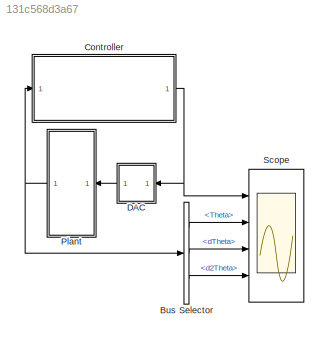
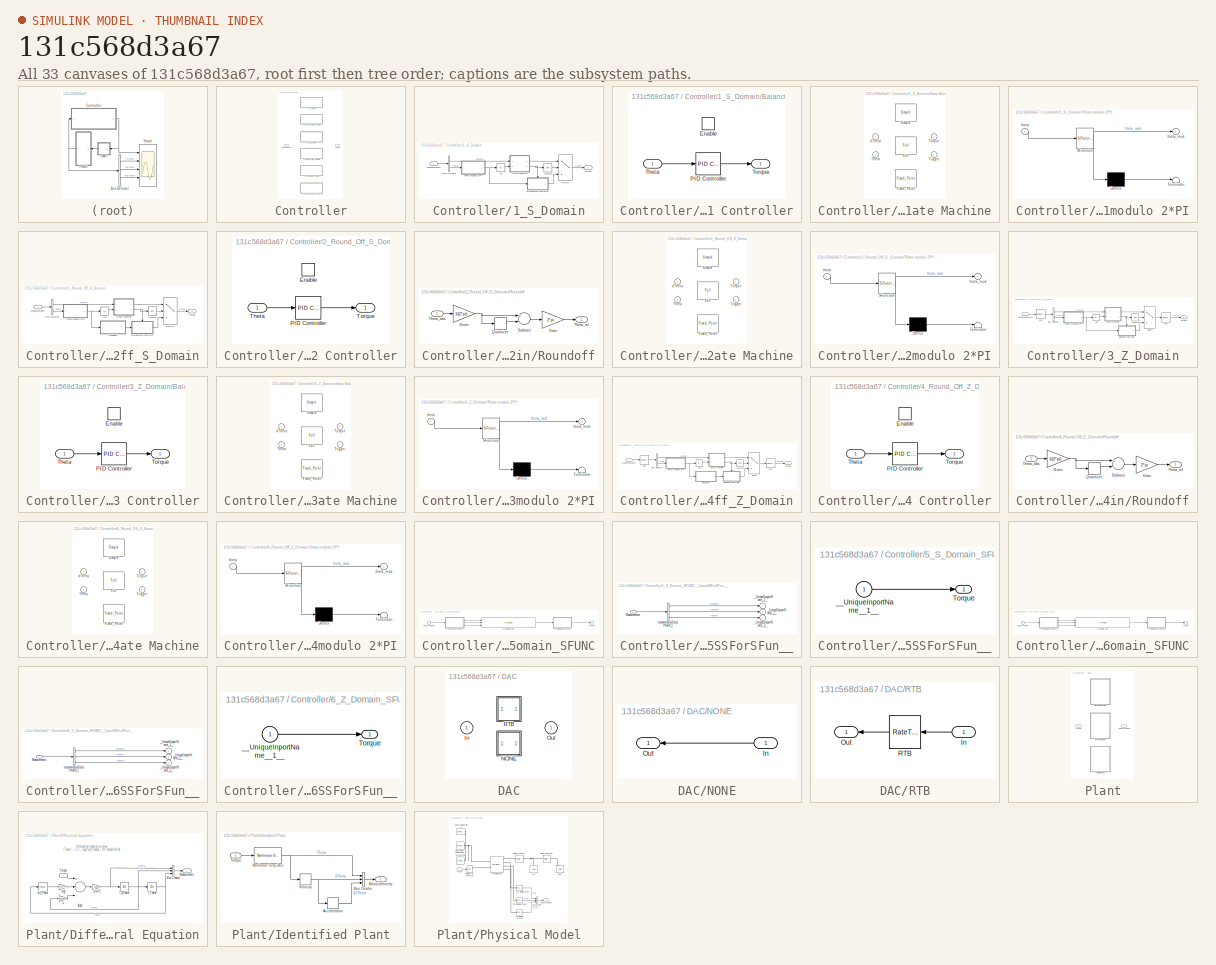
[diagram: thumbnail index - all 33 canvases of the model, root first then tree order]
MODEL slx_131c568d3a67
KIND model
CONFIG AbsTol = auto
CONFIG FixedStep = TS
CONFIG MaxStep = TS
CONFIG MinStep = auto
CONFIG RelTol = 1e-3
CONFIG SampleTimeConstraint = Unconstrained
CONFIG Solver = ode23t
CONFIG SolverMode = SingleTasking
CONFIG SolverName = ode23t
CONFIG StartTime = 0.0
CONFIG StopTime = 100
WORKSPACE source: external: MAT-File  (data not in archive)
BLOCK [BusSelector] Bus Selector
  OutputSignals = Theta,dTheta,d2Theta
  Ports = [1, 3]
BLOCK [SubSystem] Controller
  OverrideUsingVariant = SIM_S
  Ports = [1, 1]
  RequestExecContextInheritance = off
  Variant = on
BLOCK [SubSystem] Controller/1_S_Domain
  Ports = [1, 1]
  RequestExecContextInheritance = off
  Variant = off
  VariantControl = SIM_S
BLOCK [Abs] Controller/1_S_Domain/Abs
  SaturateOnIntegerOverflow = off
BLOCK [SubSystem] Controller/1_S_Domain/Balancing Controller
  Ports = [1, 1, 1]
  RequestExecContextInheritance = off
  TreatAsAtomicUnit = on
  Variant = off
BLOCK [EnablePort] Controller/1_S_Domain/Balancing Controller/Enable
  Ports = []
BLOCK [Reference] Controller/1_S_Domain/Balancing Controller/PID Controller  REF=simulink/Continuous/PID Controller
  Ports = [1, 1]
  SourceBlock = simulink/Continuous/PID Controller
  SourceType = PID 1dof
BLOCK [Inport] Controller/1_S_Domain/Balancing Controller/Theta
  IconDisplay = Port number
BLOCK [Outport] Controller/1_S_Domain/Balancing Controller/Torque
  IconDisplay = Port number
BLOCK [BusSelector] Controller/1_S_Domain/Bus Selector
  OutputSignals = dTheta,Theta
  Ports = [1, 2]
BLOCK [Logic] Controller/1_S_Domain/Inverter
  AllPortsSameDT = off
  Operator = NOT
  OutDataTypeStr = boolean
  Ports = [1, 1]
BLOCK [Inport] Controller/1_S_Domain/Measurements
  IconDisplay = Port number
BLOCK [SubSystem] Controller/1_S_Domain/State Machine
  OverrideUsingVariant = DOUBLE_PRECISION
  Ports = [2, 2]
  RequestExecContextInheritance = off
  Variant = on
BLOCK [Reference] Controller/1_S_Domain/State Machine/Fixed_Point  REF=State_Machine/Fixed_Point
  Ports = [2, 2]
  SourceBlock = State_Machine/Fixed_Point
BLOCK [Reference] Controller/1_S_Domain/State Machine/Full  REF=State_Machine/Full
  Ports = [2, 2]
  SourceBlock = State_Machine/Full
BLOCK [Reference] Controller/1_S_Domain/State Machine/Simple  REF=State_Machine/Simple
  Ports = [2, 2]
  SourceBlock = State_Machine/Simple
BLOCK [Inport] Controller/1_S_Domain/State Machine/Theta
  IconDisplay = Port number
  Port = 2
BLOCK [Outport] Controller/1_S_Domain/State Machine/Torque
  IconDisplay = Port number
BLOCK [Outport] Controller/1_S_Domain/State Machine/Trigger
  IconDisplay = Port number
  Port = 2
BLOCK [Inport] Controller/1_S_Domain/State Machine/dTheta
  IconDisplay = Port number
BLOCK [Switch] Controller/1_S_Domain/Switch
  Criteria = u2 > Threshold
  InputSameDT = off
  SaturateOnIntegerOverflow = off
BLOCK [SubSystem] Controller/1_S_Domain/Theta modulo 2*PI
  ErrorFcn = Stateflow.Translate.translate
  PermitHierarchicalResolution = ExplicitOnly
  Ports = [1, 1]
  RequestExecContextInheritance = off
  SFBlockType = MATLAB Function
  TreatAsAtomicUnit = on
  Variant = off
BLOCK [Demux] Controller/1_S_Domain/Theta modulo 2*PI/ Demux 
  Outputs = 1
  Ports = [1, 1]
BLOCK [S-Function] Controller/1_S_Domain/Theta modulo 2*PI/ SFunction 
  EnableBusSupport = on
  FunctionName = sf_sfun
  PortCounts = [1 2]
  Ports = [1, 2]
  SFunctionDeploymentMode = off
  Tag = Stateflow S-Function Inverted_Pendulum 3
BLOCK [Terminator] Controller/1_S_Domain/Theta modulo 2*PI/ Terminator 
BLOCK [Inport] Controller/1_S_Domain/Theta modulo 2*PI/theta
  IconDisplay = Port number
BLOCK [Outport] Controller/1_S_Domain/Theta modulo 2*PI/theta_mod
  IconDisplay = Port number
BLOCK [Outport] Controller/1_S_Domain/Torque
  IconDisplay = Port number
BLOCK [SubSystem] Controller/2_Round_Off_S_Domain
  Ports = [1, 1]
  RequestExecContextInheritance = off
  Variant = off
  VariantControl = SIM_ROUND_S
BLOCK [Abs] Controller/2_Round_Off_S_Domain/Abs
  SaturateOnIntegerOverflow = off
BLOCK [SubSystem] Controller/2_Round_Off_S_Domain/Balancing Controller
  Ports = [1, 1, 1]
  RequestExecContextInheritance = off
  TreatAsAtomicUnit = on
  Variant = off
BLOCK [EnablePort] Controller/2_Round_Off_S_Domain/Balancing Controller/Enable
  Ports = []
BLOCK [Reference] Controller/2_Round_Off_S_Domain/Balancing Controller/PID Controller  REF=simulink/Continuous/PID Controller
  Ports = [1, 1]
  SourceBlock = simulink/Continuous/PID Controller
  SourceType = PID 1dof
BLOCK [Inport] Controller/2_Round_Off_S_Domain/Balancing Controller/Theta
  IconDisplay = Port number
BLOCK [Outport] Controller/2_Round_Off_S_Domain/Balancing Controller/Torque
  IconDisplay = Port number
BLOCK [BusSelector] Controller/2_Round_Off_S_Domain/Bus Selector
  OutputSignals = dTheta,Theta
  Ports = [1, 2]
BLOCK [Logic] Controller/2_Round_Off_S_Domain/Inverter
  AllPortsSameDT = off
  Operator = NOT
  OutDataTypeStr = boolean
  Ports = [1, 1]
BLOCK [Inport] Controller/2_Round_Off_S_Domain/Measurements
  IconDisplay = Port number
BLOCK [SubSystem] Controller/2_Round_Off_S_Domain/Roundoff
  Ports = [1, 1]
  RequestExecContextInheritance = off
  Variant = off
BLOCK [Gain] Controller/2_Round_Off_S_Domain/Roundoff/Gain
  Gain = 2*pi
  OutDataTypeStr = Inherit: Inherit via internal rule
  ParamDataTypeStr = Inherit: Inherit via internal rule
  SaturateOnIntegerOverflow = off
BLOCK [Gain] Controller/2_Round_Off_S_Domain/Roundoff/Norm
  Gain = 1/(2*pi)
  OutDataTypeStr = Inherit: Inherit via internal rule
  ParamDataTypeStr = Inherit: Inherit via internal rule
  SaturateOnIntegerOverflow = off
BLOCK [Quantizer] Controller/2_Round_Off_S_Domain/Roundoff/Quantizer
  QuantizationInterval = 1
BLOCK [Sum] Controller/2_Round_Off_S_Domain/Roundoff/Subtract
  InputSameDT = off
  Inputs = +-
  OutDataTypeStr = Inherit: Inherit via internal rule
  Ports = [2, 1]
  SaturateOnIntegerOverflow = off
BLOCK [Inport] Controller/2_Round_Off_S_Domain/Roundoff/Theta_abs
  IconDisplay = Port number
BLOCK [Outport] Controller/2_Round_Off_S_Domain/Roundoff/Theta_rel
  IconDisplay = Port number
BLOCK [SubSystem] Controller/2_Round_Off_S_Domain/State Machine
  OverrideUsingVariant = DOUBLE_PRECISION
  Ports = [2, 2]
  RequestExecContextInheritance = off
  Variant = on
BLOCK [Reference] Controller/2_Round_Off_S_Domain/State Machine/Fixed_Point  REF=State_Machine/Fixed_Point
  Ports = [2, 2]
  SourceBlock = State_Machine/Fixed_Point
BLOCK [Reference] Controller/2_Round_Off_S_Domain/State Machine/Full  REF=State_Machine/Full
  Ports = [2, 2]
  SourceBlock = State_Machine/Full
BLOCK [Reference] Controller/2_Round_Off_S_Domain/State Machine/Simple  REF=State_Machine/Simple
  Ports = [2, 2]
  SourceBlock = State_Machine/Simple
BLOCK [Inport] Controller/2_Round_Off_S_Domain/State Machine/Theta
  IconDisplay = Port number
  Port = 2
BLOCK [Outport] Controller/2_Round_Off_S_Domain/State Machine/Torque
  IconDisplay = Port number
BLOCK [Outport] Controller/2_Round_Off_S_Domain/State Machine/Trigger
  IconDisplay = Port number
  Port = 2
BLOCK [Inport] Controller/2_Round_Off_S_Domain/State Machine/dTheta
  IconDisplay = Port number
BLOCK [Switch] Controller/2_Round_Off_S_Domain/Switch
  Criteria = u2 > Threshold
  InputSameDT = off
  SaturateOnIntegerOverflow = off
BLOCK [SubSystem] Controller/2_Round_Off_S_Domain/Theta modulo 2*PI
  ErrorFcn = Stateflow.Translate.translate
  PermitHierarchicalResolution = ExplicitOnly
  Ports = [1, 1]
  RequestExecContextInheritance = off
  SFBlockType = MATLAB Function
  TreatAsAtomicUnit = on
  Variant = off
BLOCK [Demux] Controller/2_Round_Off_S_Domain/Theta modulo 2*PI/ Demux 
  Outputs = 1
  Ports = [1, 1]
BLOCK [S-Function] Controller/2_Round_Off_S_Domain/Theta modulo 2*PI/ SFunction 
  EnableBusSupport = on
  FunctionName = sf_sfun
  PortCounts = [1 2]
  Ports = [1, 2]
  SFunctionDeploymentMode = off
  Tag = Stateflow S-Function Inverted_Pendulum 1
BLOCK [Terminator] Controller/2_Round_Off_S_Domain/Theta modulo 2*PI/ Terminator 
BLOCK [Inport] Controller/2_Round_Off_S_Domain/Theta modulo 2*PI/theta
  IconDisplay = Port number
BLOCK [Outport] Controller/2_Round_Off_S_Domain/Theta modulo 2*PI/theta_mod
  IconDisplay = Port number
BLOCK [Outport] Controller/2_Round_Off_S_Domain/Torque
  IconDisplay = Port number
BLOCK [SubSystem] Controller/3_Z_Domain
  Ports = [1, 1]
  RequestExecContextInheritance = off
  Variant = off
  VariantControl = SIM_Z
BLOCK [RateTransition] Controller/3_Z_Domain/ADC
BLOCK [Abs] Controller/3_Z_Domain/Abs
  SaturateOnIntegerOverflow = off
BLOCK [SubSystem] Controller/3_Z_Domain/Balancing Controller
  Ports = [1, 1, 1]
  RequestExecContextInheritance = off
  TreatAsAtomicUnit = on
  Variant = off
BLOCK [EnablePort] Controller/3_Z_Domain/Balancing Controller/Enable
  Ports = []
BLOCK [Reference] Controller/3_Z_Domain/Balancing Controller/PID Controller  REF=simulink/Continuous/PID Controller
  Ports = [1, 1]
  SourceBlock = simulink/Continuous/PID Controller
  SourceType = PID 1dof
BLOCK [Inport] Controller/3_Z_Domain/Balancing Controller/Theta
  IconDisplay = Port number
BLOCK [Outport] Controller/3_Z_Domain/Balancing Controller/Torque
  IconDisplay = Port number
BLOCK [BusSelector] Controller/3_Z_Domain/Bus Selector
  OutputSignals = dTheta,Theta
  Ports = [1, 2]
BLOCK [RateTransition] Controller/3_Z_Domain/DAC
BLOCK [Logic] Controller/3_Z_Domain/Inverter
  AllPortsSameDT = off
  Operator = NOT
  OutDataTypeStr = boolean
  Ports = [1, 1]
BLOCK [Inport] Controller/3_Z_Domain/Measurements
  IconDisplay = Port number
BLOCK [SubSystem] Controller/3_Z_Domain/State Machine
  OverrideUsingVariant = DOUBLE_PRECISION
  Ports = [2, 2]
  RequestExecContextInheritance = off
  Variant = on
BLOCK [Reference] Controller/3_Z_Domain/State Machine/Fixed_Point  REF=State_Machine/Fixed_Point
  Ports = [2, 2]
  SourceBlock = State_Machine/Fixed_Point
BLOCK [Reference] Controller/3_Z_Domain/State Machine/Full  REF=State_Machine/Full
  Ports = [2, 2]
  SourceBlock = State_Machine/Full
BLOCK [Reference] Controller/3_Z_Domain/State Machine/Simple  REF=State_Machine/Simple
  Ports = [2, 2]
  SourceBlock = State_Machine/Simple
BLOCK [Inport] Controller/3_Z_Domain/State Machine/Theta
  IconDisplay = Port number
  Port = 2
BLOCK [Outport] Controller/3_Z_Domain/State Machine/Torque
  IconDisplay = Port number
BLOCK [Outport] Controller/3_Z_Domain/State Machine/Trigger
  IconDisplay = Port number
  Port = 2
BLOCK [Inport] Controller/3_Z_Domain/State Machine/dTheta
  IconDisplay = Port number
BLOCK [Switch] Controller/3_Z_Domain/Switch
  Criteria = u2 > Threshold
  InputSameDT = off
  SaturateOnIntegerOverflow = off
BLOCK [SubSystem] Controller/3_Z_Domain/Theta modulo 2*PI
  ErrorFcn = Stateflow.Translate.translate
  PermitHierarchicalResolution = ExplicitOnly
  Ports = [1, 1]
  RequestExecContextInheritance = off
  SFBlockType = MATLAB Function
  TreatAsAtomicUnit = on
  Variant = off
BLOCK [Demux] Controller/3_Z_Domain/Theta modulo 2*PI/ Demux 
  Outputs = 1
  Ports = [1, 1]
BLOCK [S-Function] Controller/3_Z_Domain/Theta modulo 2*PI/ SFunction 
  EnableBusSupport = on
  FunctionName = sf_sfun
  PortCounts = [1 2]
  Ports = [1, 2]
  SFunctionDeploymentMode = off
  Tag = Stateflow S-Function Inverted_Pendulum 2
BLOCK [Terminator] Controller/3_Z_Domain/Theta modulo 2*PI/ Terminator 
BLOCK [Inport] Controller/3_Z_Domain/Theta modulo 2*PI/theta
  IconDisplay = Port number
BLOCK [Outport] Controller/3_Z_Domain/Theta modulo 2*PI/theta_mod
  IconDisplay = Port number
BLOCK [Outport] Controller/3_Z_Domain/Torque
  IconDisplay = Port number
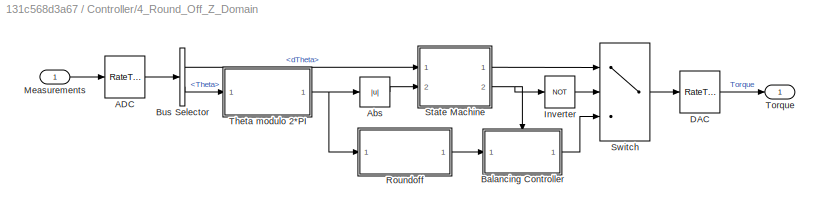
BLOCK [SubSystem] Controller/4_Round_Off_Z_Domain
  Ports = [1, 1]
  RequestExecContextInheritance = off
  Variant = off
  VariantControl = SIM_ROUND_Z
BLOCK [RateTransition] Controller/4_Round_Off_Z_Domain/ADC
BLOCK [Abs] Controller/4_Round_Off_Z_Domain/Abs
  SaturateOnIntegerOverflow = off
BLOCK [SubSystem] Controller/4_Round_Off_Z_Domain/Balancing Controller
  Ports = [1, 1, 1]
  RequestExecContextInheritance = off
  TreatAsAtomicUnit = on
  Variant = off
BLOCK [EnablePort] Controller/4_Round_Off_Z_Domain/Balancing Controller/Enable
  Ports = []
BLOCK [Reference] Controller/4_Round_Off_Z_Domain/Balancing Controller/PID Controller  REF=simulink/Continuous/PID Controller
  Ports = [1, 1]
  SourceBlock = simulink/Continuous/PID Controller
  SourceType = PID 1dof
BLOCK [Inport] Controller/4_Round_Off_Z_Domain/Balancing Controller/Theta
  IconDisplay = Port number
BLOCK [Outport] Controller/4_Round_Off_Z_Domain/Balancing Controller/Torque
  IconDisplay = Port number
BLOCK [BusSelector] Controller/4_Round_Off_Z_Domain/Bus Selector
  OutputSignals = dTheta,Theta
  Ports = [1, 2]
BLOCK [RateTransition] Controller/4_Round_Off_Z_Domain/DAC
BLOCK [Logic] Controller/4_Round_Off_Z_Domain/Inverter
  AllPortsSameDT = off
  Operator = NOT
  OutDataTypeStr = boolean
  Ports = [1, 1]
BLOCK [Inport] Controller/4_Round_Off_Z_Domain/Measurements
  IconDisplay = Port number
BLOCK [SubSystem] Controller/4_Round_Off_Z_Domain/Roundoff
  Ports = [1, 1]
  RequestExecContextInheritance = off
  Variant = off
BLOCK [Gain] Controller/4_Round_Off_Z_Domain/Roundoff/Gain
  Gain = 2*pi
  OutDataTypeStr = Inherit: Inherit via internal rule
  ParamDataTypeStr = Inherit: Inherit via internal rule
  SaturateOnIntegerOverflow = off
BLOCK [Gain] Controller/4_Round_Off_Z_Domain/Roundoff/Norm
  Gain = 1/(2*pi)
  OutDataTypeStr = Inherit: Inherit via internal rule
  ParamDataTypeStr = Inherit: Inherit via internal rule
  SaturateOnIntegerOverflow = off
BLOCK [Quantizer] Controller/4_Round_Off_Z_Domain/Roundoff/Quantizer
  QuantizationInterval = 1
BLOCK [Sum] Controller/4_Round_Off_Z_Domain/Roundoff/Subtract
  InputSameDT = off
  Inputs = +-
  OutDataTypeStr = Inherit: Inherit via internal rule
  Ports = [2, 1]
  SaturateOnIntegerOverflow = off
BLOCK [Inport] Controller/4_Round_Off_Z_Domain/Roundoff/Theta_abs
  IconDisplay = Port number
BLOCK [Outport] Controller/4_Round_Off_Z_Domain/Roundoff/Theta_rel
  IconDisplay = Port number
BLOCK [SubSystem] Controller/4_Round_Off_Z_Domain/State Machine
  OverrideUsingVariant = DOUBLE_PRECISION
  Ports = [2, 2]
  RequestExecContextInheritance = off
  Variant = on
BLOCK [Reference] Controller/4_Round_Off_Z_Domain/State Machine/Fixed_Point  REF=State_Machine/Fixed_Point
  Ports = [2, 2]
  SourceBlock = State_Machine/Fixed_Point
BLOCK [Reference] Controller/4_Round_Off_Z_Domain/State Machine/Full  REF=State_Machine/Full
  Ports = [2, 2]
  SourceBlock = State_Machine/Full
BLOCK [Reference] Controller/4_Round_Off_Z_Domain/State Machine/Simple  REF=State_Machine/Simple
  Ports = [2, 2]
  SourceBlock = State_Machine/Simple
BLOCK [Inport] Controller/4_Round_Off_Z_Domain/State Machine/Theta
  IconDisplay = Port number
  Port = 2
BLOCK [Outport] Controller/4_Round_Off_Z_Domain/State Machine/Torque
  IconDisplay = Port number
BLOCK [Outport] Controller/4_Round_Off_Z_Domain/State Machine/Trigger
  IconDisplay = Port number
  Port = 2
BLOCK [Inport] Controller/4_Round_Off_Z_Domain/State Machine/dTheta
  IconDisplay = Port number
BLOCK [Switch] Controller/4_Round_Off_Z_Domain/Switch
  Criteria = u2 > Threshold
  InputSameDT = off
  SaturateOnIntegerOverflow = off
BLOCK [SubSystem] Controller/4_Round_Off_Z_Domain/Theta modulo 2*PI
  ErrorFcn = Stateflow.Translate.translate
  PermitHierarchicalResolution = ExplicitOnly
  Ports = [1, 1]
  RequestExecContextInheritance = off
  SFBlockType = MATLAB Function
  TreatAsAtomicUnit = on
  Variant = off
BLOCK [Demux] Controller/4_Round_Off_Z_Domain/Theta modulo 2*PI/ Demux 
  Outputs = 1
  Ports = [1, 1]
BLOCK [S-Function] Controller/4_Round_Off_Z_Domain/Theta modulo 2*PI/ SFunction 
  EnableBusSupport = on
  FunctionName = sf_sfun
  PortCounts = [1 2]
  Ports = [1, 2]
  SFunctionDeploymentMode = off
  Tag = Stateflow S-Function Inverted_Pendulum 4
BLOCK [Terminator] Controller/4_Round_Off_Z_Domain/Theta modulo 2*PI/ Terminator 
BLOCK [Inport] Controller/4_Round_Off_Z_Domain/Theta modulo 2*PI/theta
  IconDisplay = Port number
BLOCK [Outport] Controller/4_Round_Off_Z_Domain/Theta modulo 2*PI/theta_mod
  IconDisplay = Port number
BLOCK [Outport] Controller/4_Round_Off_Z_Domain/Torque
  IconDisplay = Port number
BLOCK [SubSystem] Controller/5_S_Domain_SFUNC
  Ports = [1, 1]
  RequestExecContextInheritance = off
  Variant = off
  VariantControl = SFUNC_S
BLOCK [Inport] Controller/5_S_Domain_SFUNC/Measurements
  IconDisplay = Port number
BLOCK [S-Function] Controller/5_S_Domain_SFUNC/S_Domain_sfcn
  CopyFcn = if ~strcmp(get_param(gcb,'Linkstatus'),'none') && ...\n~strcmp(get_param(gcb,'Linkstatus'),'implicit')      \n  set_param(gcb,'LinkStatus','none');                \nend
  EnableBusSupport = off
  FunctionName = S_Domain_sf
  Ports = [3, 1]
  SFunctionDeploymentMode = off
BLOCK [Outport] Controller/5_S_Domain_SFUNC/Torque
  IconDisplay = Port number
BLOCK [SubSystem] Controller/5_S_Domain_SFUNC/__InputSSForSFun__
  PermitHierarchicalResolution = ExplicitOnly
  Ports = [1, 3]
  RequestExecContextInheritance = off
  Variant = off
BLOCK [Inport] Controller/5_S_Domain_SFUNC/__InputSSForSFun__/Measurements
  IconDisplay = Port number
BLOCK [Outport] Controller/5_S_Domain_SFUNC/__InputSSForSFun__/__UniqueOutportName__1__
  IconDisplay = Port number
BLOCK [Outport] Controller/5_S_Domain_SFUNC/__InputSSForSFun__/__UniqueOutportName__2__
  IconDisplay = Port number
  Port = 2
BLOCK [Outport] Controller/5_S_Domain_SFUNC/__InputSSForSFun__/__UniqueOutportName__3__
  IconDisplay = Port number
  Port = 3
BLOCK [BusSelector] Controller/5_S_Domain_SFUNC/__InputSSForSFun__/temporaryBusSelectName_1
  OutputSignals = d2Theta,dTheta,Theta
  Ports = [1, 3]
BLOCK [SubSystem] Controller/5_S_Domain_SFUNC/__OutputSSForSFun__
  PermitHierarchicalResolution = ExplicitOnly
  Ports = [1, 1]
  RequestExecContextInheritance = off
  Variant = off
BLOCK [Outport] Controller/5_S_Domain_SFUNC/__OutputSSForSFun__/Torque
  IconDisplay = Port number
BLOCK [Inport] Controller/5_S_Domain_SFUNC/__OutputSSForSFun__/__UniqueInportName__1__
  IconDisplay = Port number
BLOCK [SubSystem] Controller/6_Z_Domain_SFUNC
  Ports = [1, 1]
  RequestExecContextInheritance = off
  Variant = off
  VariantControl = SFUNC_Z
BLOCK [Inport] Controller/6_Z_Domain_SFUNC/Measurements
  IconDisplay = Port number
BLOCK [Outport] Controller/6_Z_Domain_SFUNC/Torque
  IconDisplay = Port number
BLOCK [S-Function] Controller/6_Z_Domain_SFUNC/Z_Domain_sfcn
  CopyFcn = if ~strcmp(get_param(gcb,'Linkstatus'),'none') && ...\n~strcmp(get_param(gcb,'Linkstatus'),'implicit')      \n  set_param(gcb,'LinkStatus','none');                \nend
  EnableBusSupport = off
  FunctionName = Z_Domain_sf
  Ports = [3, 1]
  SFunctionDeploymentMode = off
BLOCK [SubSystem] Controller/6_Z_Domain_SFUNC/__InputSSForSFun__
  PermitHierarchicalResolution = ExplicitOnly
  Ports = [1, 3]
  RequestExecContextInheritance = off
  Variant = off
BLOCK [Inport] Controller/6_Z_Domain_SFUNC/__InputSSForSFun__/Measurements
  IconDisplay = Port number
BLOCK [Outport] Controller/6_Z_Domain_SFUNC/__InputSSForSFun__/__UniqueOutportName__1__
  IconDisplay = Port number
BLOCK [Outport] Controller/6_Z_Domain_SFUNC/__InputSSForSFun__/__UniqueOutportName__2__
  IconDisplay = Port number
  Port = 2
BLOCK [Outport] Controller/6_Z_Domain_SFUNC/__InputSSForSFun__/__UniqueOutportName__3__
  IconDisplay = Port number
  Port = 3
BLOCK [BusSelector] Controller/6_Z_Domain_SFUNC/__InputSSForSFun__/temporaryBusSelectName_1
  OutputSignals = d2Theta,dTheta,Theta
  Ports = [1, 3]
BLOCK [SubSystem] Controller/6_Z_Domain_SFUNC/__OutputSSForSFun__
  PermitHierarchicalResolution = ExplicitOnly
  Ports = [1, 1]
  RequestExecContextInheritance = off
  Variant = off
BLOCK [Outport] Controller/6_Z_Domain_SFUNC/__OutputSSForSFun__/Torque
  IconDisplay = Port number
BLOCK [Inport] Controller/6_Z_Domain_SFUNC/__OutputSSForSFun__/__UniqueInportName__1__
  IconDisplay = Port number
BLOCK [Inport] Controller/Measurements
  IconDisplay = Port number
BLOCK [Outport] Controller/Torque
  IconDisplay = Port number
BLOCK [SubSystem] DAC
  OverrideUsingVariant = DAC_ON
  Ports = [1, 1]
  RequestExecContextInheritance = off
  Variant = on
BLOCK [Inport] DAC/In
  IconDisplay = Port number
BLOCK [SubSystem] DAC/NONE
  Ports = [1, 1]
  RequestExecContextInheritance = off
  Variant = off
  VariantControl = DAC_OFF
BLOCK [Inport] DAC/NONE/In
  IconDisplay = Port number
BLOCK [Outport] DAC/NONE/Out
  IconDisplay = Port number
BLOCK [Outport] DAC/Out
  IconDisplay = Port number
BLOCK [SubSystem] DAC/RTB
  Ports = [1, 1]
  RequestExecContextInheritance = off
  Variant = off
  VariantControl = DAC_ON
BLOCK [Inport] DAC/RTB/In
  IconDisplay = Port number
BLOCK [Outport] DAC/RTB/Out
  IconDisplay = Port number
BLOCK [RateTransition] DAC/RTB/RTB
BLOCK [SubSystem] Plant
  AttributesFormatString = %<BlockChoice>
  OverrideUsingVariant = EQUATION
  Ports = [1, 1]
  RequestExecContextInheritance = off
  Variant = on
BLOCK [SubSystem] Plant/Differential Equation
  Ports = [1, 1]
  RequestExecContextInheritance = off
  Variant = off
  VariantControl = EQUATION
BLOCK [Gain] Plant/Differential Equation/1//ml^2
  Gain = 1/(PENDULUM_MASS*PENDULUM_LENGTH^2)
  OutDataTypeStr = Inherit: Inherit via internal rule
  ParamDataTypeStr = Inherit: Inherit via internal rule
  SaturateOnIntegerOverflow = off
BLOCK [Sum] Plant/Differential Equation/Add
  InputSameDT = off
  Inputs = +--
  OutDataTypeStr = Inherit: Inherit via internal rule
  Ports = [3, 1]
  SaturateOnIntegerOverflow = off
BLOCK [BusCreator] Plant/Differential Equation/Bus Creator
  DisplayOption = bar
  InheritFromInputs = on
  Inputs = 3
  Ports = [3, 1]
BLOCK [Integrator] Plant/Differential Equation/I_Theta
  InitialCondition = Theta0
  Ports = [1, 1]
BLOCK [Integrator] Plant/Differential Equation/I_dTheta
  Ports = [1, 1]
BLOCK [Outport] Plant/Differential Equation/Measurements
  IconDisplay = Port number
BLOCK [Inport] Plant/Differential Equation/Torque
  IconDisplay = Port number
BLOCK [Gain] Plant/Differential Equation/k
  Gain = PENDULUM_FRICTION
  OutDataTypeStr = Inherit: Inherit via internal rule
  ParamDataTypeStr = Inherit: Inherit via internal rule
  SaturateOnIntegerOverflow = off
BLOCK [Gain] Plant/Differential Equation/mgl
  Gain = GRAVITY*PENDULUM_MASS*PENDULUM_LENGTH
  OutDataTypeStr = Inherit: Inherit via internal rule
  ParamDataTypeStr = Inherit: Inherit via internal rule
  SaturateOnIntegerOverflow = off
BLOCK [Trigonometry] Plant/Differential Equation/sin_Theta
  Ports = [1, 1]
BLOCK [SubSystem] Plant/Identified Plant
  Ports = [1, 1]
  RequestExecContextInheritance = off
  Variant = off
  VariantControl = IDENT
BLOCK [Derivative] Plant/Identified Plant/Acceleration
BLOCK [BusCreator] Plant/Identified Plant/Bus Creator
  DisplayOption = bar
  InheritFromInputs = on
  Inputs = 3
  Ports = [3, 1]
BLOCK [Outport] Plant/Identified Plant/Measurements
  IconDisplay = Port number
BLOCK [Reference] Plant/Identified Plant/Nonlinear Grey-Box  REF=slident/Models/Nonlinear Grey-Box Model  (lib defined in mdl_f7d4911ca73a)
  Ports = [1, 1]
  SourceBlock = slident/Models/Nonlinear Grey-Box Model
  SourceType = Nonlinear Grey-Box Model
BLOCK [Inport] Plant/Identified Plant/Torque
  IconDisplay = Port number
BLOCK [Derivative] Plant/Identified Plant/Velocity
BLOCK [Outport] Plant/Measurements
  IconDisplay = Port number
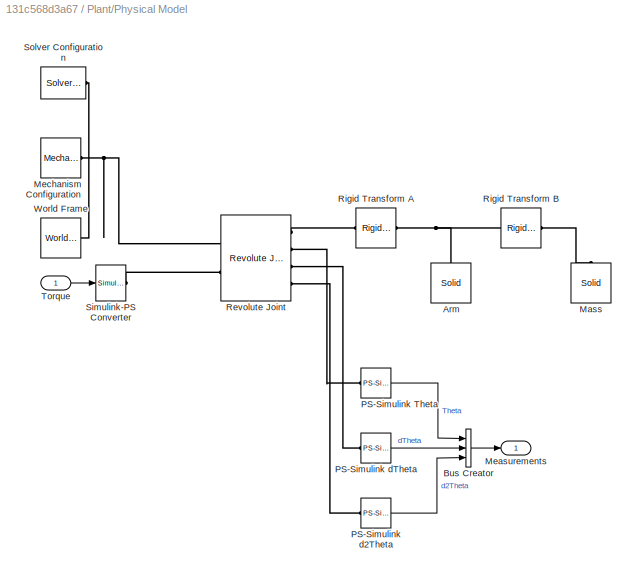
BLOCK [SubSystem] Plant/Physical Model
  Ports = [1, 1]
  RequestExecContextInheritance = off
  Variant = off
  VariantControl = PHYSICAL
BLOCK [Reference] Plant/Physical Model/Arm  REF=sm_lib/Body Elements/Solid
  Ports = [0, 0, 0, 0, 0, 0, 1]
  SourceBlock = sm_lib/Body Elements/Solid
  SourceType = Solid
BLOCK [BusCreator] Plant/Physical Model/Bus Creator
  DisplayOption = bar
  InheritFromInputs = on
  Inputs = 3
  Ports = [3, 1]
BLOCK [Reference] Plant/Physical Model/Mass  REF=sm_lib/Body Elements/Solid
  Ports = [0, 0, 0, 0, 0, 0, 1]
  SourceBlock = sm_lib/Body Elements/Solid
  SourceType = Solid
BLOCK [Outport] Plant/Physical Model/Measurements
  IconDisplay = Port number
BLOCK [Reference] Plant/Physical Model/Mechanism Configuration  REF=sm_lib/Utilities/Mechanism
Configuration
  Ports = [0, 0, 0, 0, 0, 0, 1]
  SourceBlock = sm_lib/Utilities/Mechanism\nConfiguration
  SourceType = Mechanism\nConfiguration
BLOCK [Reference] Plant/Physical Model/PS-Simulink Theta  REF=nesl_utility/PS-Simulink
Converter
  Ports = [0, 1, 0, 0, 0, 1]
  SourceBlock = nesl_utility/PS-Simulink\nConverter
  SourceType = PS-Simulink\nConverter
BLOCK [Reference] Plant/Physical Model/PS-Simulink d2Theta  REF=nesl_utility/PS-Simulink
Converter
  Ports = [0, 1, 0, 0, 0, 1]
  SourceBlock = nesl_utility/PS-Simulink\nConverter
  SourceType = PS-Simulink\nConverter
BLOCK [Reference] Plant/Physical Model/PS-Simulink dTheta  REF=nesl_utility/PS-Simulink
Converter
  Ports = [0, 1, 0, 0, 0, 1]
  SourceBlock = nesl_utility/PS-Simulink\nConverter
  SourceType = PS-Simulink\nConverter
BLOCK [Reference] Plant/Physical Model/Revolute Joint  REF=sm_lib/Joints/Revolute Joint
  Ports = [0, 0, 0, 0, 0, 2, 4]
  SourceBlock = sm_lib/Joints/Revolute Joint
  SourceType = Revolute Joint
BLOCK [Reference] Plant/Physical Model/Rigid Transform A  REF=sm_lib/Frames and
Transforms/Rigid
Transform
  Ports = [0, 0, 0, 0, 0, 1, 1]
  SourceBlock = sm_lib/Frames and\nTransforms/Rigid\nTransform
  SourceType = Rigid\nTransform
BLOCK [Reference] Plant/Physical Model/Rigid Transform B  REF=sm_lib/Frames and
Transforms/Rigid
Transform
  Ports = [0, 0, 0, 0, 0, 1, 1]
  SourceBlock = sm_lib/Frames and\nTransforms/Rigid\nTransform
  SourceType = Rigid\nTransform
BLOCK [Reference] Plant/Physical Model/Simulink-PS Converter  REF=nesl_utility/Simulink-PS
Converter
  Ports = [1, 0, 0, 0, 0, 0, 1]
  SourceBlock = nesl_utility/Simulink-PS\nConverter
  SourceType = Simulink-PS\nConverter
BLOCK [Reference] Plant/Physical Model/Solver Configuration  REF=nesl_utility/Solver
Configuration
  Ports = [0, 0, 0, 0, 0, 0, 1]
  SourceBlock = nesl_utility/Solver\nConfiguration
  SourceType = Solver\nConfiguration
BLOCK [Inport] Plant/Physical Model/Torque
  IconDisplay = Port number
BLOCK [Reference] Plant/Physical Model/World Frame  REF=sm_lib/Frames and
Transforms/World Frame
  Ports = [0, 0, 0, 0, 0, 0, 1]
  SourceBlock = sm_lib/Frames and\nTransforms/World Frame
  SourceType = World Frame
BLOCK [Inport] Plant/Torque
  IconDisplay = Port number
BLOCK [Scope] Scope
  NumInputPorts = 4
  Ports = [4]
  ScopeSpecificationString = Simulink.scopes.TimeScopeBlockCfg('CurrentConfiguration', extmgr.ConfigurationSet(extmgr.Configuration('Core','General UI',true,'FigureColor',[0.501960784313725 0.501960784313725 0.501960784313725]),extmgr.Configuration('Core','Source UI',true),extmgr.Configuration('Sources','WiredSimulink',true,'PointsPerSignal',100000,'DataLoggingDecimation','1','DataLoggingDecimateData',true,'DataLoggingSaveFor...<+6172ch>
ANNOTATION Plant/Differential Equation: Differential equation to solve: \Theta'' = (T - mgl*sin(\Theta) - k*\Theta)/(ml^2)
LINE Bus Selector:1 -> Scope:2
LINE Bus Selector:2 -> Scope:3
LINE Bus Selector:3 -> Scope:4
LINE Controller/1_S_Domain/Abs:1 -> Controller/1_S_Domain/State Machine:2
LINE Controller/1_S_Domain/Balancing Controller/PID Controller:1 -> Controller/1_S_Domain/Balancing Controller/Torque:1
LINE Controller/1_S_Domain/Balancing Controller/Theta:1 -> Controller/1_S_Domain/Balancing Controller/PID Controller:1
LINE Controller/1_S_Domain/Balancing Controller:1 -> Controller/1_S_Domain/Switch:3
LINE Controller/1_S_Domain/Bus Selector:1 -> Controller/1_S_Domain/State Machine:1
LINE Controller/1_S_Domain/Bus Selector:2 -> Controller/1_S_Domain/Theta modulo 2*PI:1
LINE Controller/1_S_Domain/Inverter:1 -> Controller/1_S_Domain/Switch:2
LINE Controller/1_S_Domain/Measurements:1 -> Controller/1_S_Domain/Bus Selector:1
LINE Controller/1_S_Domain/State Machine:1 -> Controller/1_S_Domain/Switch:1
NET Controller/1_S_Domain/State Machine:2 -> Controller/1_S_Domain/Balancing Controller:enable, Controller/1_S_Domain/Inverter:1
LINE Controller/1_S_Domain/Switch:1 -> Controller/1_S_Domain/Torque:1
NET Controller/1_S_Domain/Theta modulo 2*PI:1 -> Controller/1_S_Domain/Abs:1, Controller/1_S_Domain/Balancing Controller:1
LINE Controller/2_Round_Off_S_Domain/Abs:1 -> Controller/2_Round_Off_S_Domain/State Machine:2
LINE Controller/2_Round_Off_S_Domain/Balancing Controller/PID Controller:1 -> Controller/2_Round_Off_S_Domain/Balancing Controller/Torque:1
LINE Controller/2_Round_Off_S_Domain/Balancing Controller/Theta:1 -> Controller/2_Round_Off_S_Domain/Balancing Controller/PID Controller:1
LINE Controller/2_Round_Off_S_Domain/Balancing Controller:1 -> Controller/2_Round_Off_S_Domain/Switch:3
LINE Controller/2_Round_Off_S_Domain/Bus Selector:1 -> Controller/2_Round_Off_S_Domain/State Machine:1
LINE Controller/2_Round_Off_S_Domain/Bus Selector:2 -> Controller/2_Round_Off_S_Domain/Theta modulo 2*PI:1
LINE Controller/2_Round_Off_S_Domain/Inverter:1 -> Controller/2_Round_Off_S_Domain/Switch:2
LINE Controller/2_Round_Off_S_Domain/Measurements:1 -> Controller/2_Round_Off_S_Domain/Bus Selector:1
LINE Controller/2_Round_Off_S_Domain/Roundoff/Gain:1 -> Controller/2_Round_Off_S_Domain/Roundoff/Theta_rel:1
NET Controller/2_Round_Off_S_Domain/Roundoff/Norm:1 -> Controller/2_Round_Off_S_Domain/Roundoff/Quantizer:1, Controller/2_Round_Off_S_Domain/Roundoff/Subtract:1
LINE Controller/2_Round_Off_S_Domain/Roundoff/Quantizer:1 -> Controller/2_Round_Off_S_Domain/Roundoff/Subtract:2
LINE Controller/2_Round_Off_S_Domain/Roundoff/Subtract:1 -> Controller/2_Round_Off_S_Domain/Roundoff/Gain:1
LINE Controller/2_Round_Off_S_Domain/Roundoff/Theta_abs:1 -> Controller/2_Round_Off_S_Domain/Roundoff/Norm:1
LINE Controller/2_Round_Off_S_Domain/Roundoff:1 -> Controller/2_Round_Off_S_Domain/Balancing Controller:1
LINE Controller/2_Round_Off_S_Domain/State Machine:1 -> Controller/2_Round_Off_S_Domain/Switch:1
NET Controller/2_Round_Off_S_Domain/State Machine:2 -> Controller/2_Round_Off_S_Domain/Balancing Controller:enable, Controller/2_Round_Off_S_Domain/Inverter:1
LINE Controller/2_Round_Off_S_Domain/Switch:1 -> Controller/2_Round_Off_S_Domain/Torque:1
NET Controller/2_Round_Off_S_Domain/Theta modulo 2*PI:1 -> Controller/2_Round_Off_S_Domain/Abs:1, Controller/2_Round_Off_S_Domain/Roundoff:1
LINE Controller/3_Z_Domain/ADC:1 -> Controller/3_Z_Domain/Bus Selector:1
LINE Controller/3_Z_Domain/Abs:1 -> Controller/3_Z_Domain/State Machine:2
LINE Controller/3_Z_Domain/Balancing Controller/PID Controller:1 -> Controller/3_Z_Domain/Balancing Controller/Torque:1
LINE Controller/3_Z_Domain/Balancing Controller/Theta:1 -> Controller/3_Z_Domain/Balancing Controller/PID Controller:1
LINE Controller/3_Z_Domain/Balancing Controller:1 -> Controller/3_Z_Domain/Switch:3
LINE Controller/3_Z_Domain/Bus Selector:1 -> Controller/3_Z_Domain/State Machine:1
LINE Controller/3_Z_Domain/Bus Selector:2 -> Controller/3_Z_Domain/Theta modulo 2*PI:1
LINE Controller/3_Z_Domain/DAC:1 -> Controller/3_Z_Domain/Torque:1
LINE Controller/3_Z_Domain/Inverter:1 -> Controller/3_Z_Domain/Switch:2
LINE Controller/3_Z_Domain/Measurements:1 -> Controller/3_Z_Domain/ADC:1
LINE Controller/3_Z_Domain/State Machine:1 -> Controller/3_Z_Domain/Switch:1
NET Controller/3_Z_Domain/State Machine:2 -> Controller/3_Z_Domain/Balancing Controller:enable, Controller/3_Z_Domain/Inverter:1
LINE Controller/3_Z_Domain/Switch:1 -> Controller/3_Z_Domain/DAC:1
NET Controller/3_Z_Domain/Theta modulo 2*PI:1 -> Controller/3_Z_Domain/Abs:1, Controller/3_Z_Domain/Balancing Controller:1
LINE Controller/4_Round_Off_Z_Domain/ADC:1 -> Controller/4_Round_Off_Z_Domain/Bus Selector:1
LINE Controller/4_Round_Off_Z_Domain/Abs:1 -> Controller/4_Round_Off_Z_Domain/State Machine:2
LINE Controller/4_Round_Off_Z_Domain/Balancing Controller/PID Controller:1 -> Controller/4_Round_Off_Z_Domain/Balancing Controller/Torque:1
LINE Controller/4_Round_Off_Z_Domain/Balancing Controller/Theta:1 -> Controller/4_Round_Off_Z_Domain/Balancing Controller/PID Controller:1
LINE Controller/4_Round_Off_Z_Domain/Balancing Controller:1 -> Controller/4_Round_Off_Z_Domain/Switch:3
LINE Controller/4_Round_Off_Z_Domain/Bus Selector:1 -> Controller/4_Round_Off_Z_Domain/State Machine:1
LINE Controller/4_Round_Off_Z_Domain/Bus Selector:2 -> Controller/4_Round_Off_Z_Domain/Theta modulo 2*PI:1
LINE Controller/4_Round_Off_Z_Domain/DAC:1 -> Controller/4_Round_Off_Z_Domain/Torque:1
LINE Controller/4_Round_Off_Z_Domain/Inverter:1 -> Controller/4_Round_Off_Z_Domain/Switch:2
LINE Controller/4_Round_Off_Z_Domain/Measurements:1 -> Controller/4_Round_Off_Z_Domain/ADC:1
LINE Controller/4_Round_Off_Z_Domain/Roundoff/Gain:1 -> Controller/4_Round_Off_Z_Domain/Roundoff/Theta_rel:1
NET Controller/4_Round_Off_Z_Domain/Roundoff/Norm:1 -> Controller/4_Round_Off_Z_Domain/Roundoff/Quantizer:1, Controller/4_Round_Off_Z_Domain/Roundoff/Subtract:1
LINE Controller/4_Round_Off_Z_Domain/Roundoff/Quantizer:1 -> Controller/4_Round_Off_Z_Domain/Roundoff/Subtract:2
LINE Controller/4_Round_Off_Z_Domain/Roundoff/Subtract:1 -> Controller/4_Round_Off_Z_Domain/Roundoff/Gain:1
LINE Controller/4_Round_Off_Z_Domain/Roundoff/Theta_abs:1 -> Controller/4_Round_Off_Z_Domain/Roundoff/Norm:1
LINE Controller/4_Round_Off_Z_Domain/Roundoff:1 -> Controller/4_Round_Off_Z_Domain/Balancing Controller:1
LINE Controller/4_Round_Off_Z_Domain/State Machine:1 -> Controller/4_Round_Off_Z_Domain/Switch:1
NET Controller/4_Round_Off_Z_Domain/State Machine:2 -> Controller/4_Round_Off_Z_Domain/Balancing Controller:enable, Controller/4_Round_Off_Z_Domain/Inverter:1
LINE Controller/4_Round_Off_Z_Domain/Switch:1 -> Controller/4_Round_Off_Z_Domain/DAC:1
NET Controller/4_Round_Off_Z_Domain/Theta modulo 2*PI:1 -> Controller/4_Round_Off_Z_Domain/Abs:1, Controller/4_Round_Off_Z_Domain/Roundoff:1
LINE Controller/5_S_Domain_SFUNC/Measurements:1 -> Controller/5_S_Domain_SFUNC/__InputSSForSFun__:1
LINE Controller/5_S_Domain_SFUNC/S_Domain_sfcn:1 -> Controller/5_S_Domain_SFUNC/__OutputSSForSFun__:1
LINE Controller/5_S_Domain_SFUNC/__InputSSForSFun__/Measurements:1 -> Controller/5_S_Domain_SFUNC/__InputSSForSFun__/temporaryBusSelectName_1:1
LINE Controller/5_S_Domain_SFUNC/__InputSSForSFun__/temporaryBusSelectName_1:1 -> Controller/5_S_Domain_SFUNC/__InputSSForSFun__/__UniqueOutportName__1__:1
LINE Controller/5_S_Domain_SFUNC/__InputSSForSFun__/temporaryBusSelectName_1:2 -> Controller/5_S_Domain_SFUNC/__InputSSForSFun__/__UniqueOutportName__2__:1
LINE Controller/5_S_Domain_SFUNC/__InputSSForSFun__/temporaryBusSelectName_1:3 -> Controller/5_S_Domain_SFUNC/__InputSSForSFun__/__UniqueOutportName__3__:1
LINE Controller/5_S_Domain_SFUNC/__InputSSForSFun__:1 -> Controller/5_S_Domain_SFUNC/S_Domain_sfcn:1
LINE Controller/5_S_Domain_SFUNC/__InputSSForSFun__:2 -> Controller/5_S_Domain_SFUNC/S_Domain_sfcn:2
LINE Controller/5_S_Domain_SFUNC/__InputSSForSFun__:3 -> Controller/5_S_Domain_SFUNC/S_Domain_sfcn:3
LINE Controller/5_S_Domain_SFUNC/__OutputSSForSFun__/__UniqueInportName__1__:1 -> Controller/5_S_Domain_SFUNC/__OutputSSForSFun__/Torque:1
LINE Controller/5_S_Domain_SFUNC/__OutputSSForSFun__:1 -> Controller/5_S_Domain_SFUNC/Torque:1
LINE Controller/6_Z_Domain_SFUNC/Measurements:1 -> Controller/6_Z_Domain_SFUNC/__InputSSForSFun__:1
LINE Controller/6_Z_Domain_SFUNC/Z_Domain_sfcn:1 -> Controller/6_Z_Domain_SFUNC/__OutputSSForSFun__:1
LINE Controller/6_Z_Domain_SFUNC/__InputSSForSFun__/Measurements:1 -> Controller/6_Z_Domain_SFUNC/__InputSSForSFun__/temporaryBusSelectName_1:1
LINE Controller/6_Z_Domain_SFUNC/__InputSSForSFun__/temporaryBusSelectName_1:1 -> Controller/6_Z_Domain_SFUNC/__InputSSForSFun__/__UniqueOutportName__1__:1
LINE Controller/6_Z_Domain_SFUNC/__InputSSForSFun__/temporaryBusSelectName_1:2 -> Controller/6_Z_Domain_SFUNC/__InputSSForSFun__/__UniqueOutportName__2__:1
LINE Controller/6_Z_Domain_SFUNC/__InputSSForSFun__/temporaryBusSelectName_1:3 -> Controller/6_Z_Domain_SFUNC/__InputSSForSFun__/__UniqueOutportName__3__:1
LINE Controller/6_Z_Domain_SFUNC/__InputSSForSFun__:1 -> Controller/6_Z_Domain_SFUNC/Z_Domain_sfcn:1
LINE Controller/6_Z_Domain_SFUNC/__InputSSForSFun__:2 -> Controller/6_Z_Domain_SFUNC/Z_Domain_sfcn:2
LINE Controller/6_Z_Domain_SFUNC/__InputSSForSFun__:3 -> Controller/6_Z_Domain_SFUNC/Z_Domain_sfcn:3
LINE Controller/6_Z_Domain_SFUNC/__OutputSSForSFun__/__UniqueInportName__1__:1 -> Controller/6_Z_Domain_SFUNC/__OutputSSForSFun__/Torque:1
LINE Controller/6_Z_Domain_SFUNC/__OutputSSForSFun__:1 -> Controller/6_Z_Domain_SFUNC/Torque:1
NET Controller:1 -> DAC:1, Scope:1
LINE DAC/NONE/In:1 -> DAC/NONE/Out:1
LINE DAC/RTB/In:1 -> DAC/RTB/RTB:1
LINE DAC/RTB/RTB:1 -> DAC/RTB/Out:1
LINE DAC:1 -> Plant:1
NET Plant/Differential Equation/1//ml^2:1 -> Plant/Differential Equation/Bus Creator:1, Plant/Differential Equation/I_dTheta:1
LINE Plant/Differential Equation/Add:1 -> Plant/Differential Equation/1//ml^2:1
LINE Plant/Differential Equation/Bus Creator:1 -> Plant/Differential Equation/Measurements:1
NET Plant/Differential Equation/I_Theta:1 -> Plant/Differential Equation/Bus Creator:3, Plant/Differential Equation/sin_Theta:1
NET Plant/Differential Equation/I_dTheta:1 -> Plant/Differential Equation/Bus Creator:2, Plant/Differential Equation/I_Theta:1, Plant/Differential Equation/k:1
LINE Plant/Differential Equation/Torque:1 -> Plant/Differential Equation/Add:1
LINE Plant/Differential Equation/k:1 -> Plant/Differential Equation/Add:3
LINE Plant/Differential Equation/mgl:1 -> Plant/Differential Equation/Add:2
LINE Plant/Differential Equation/sin_Theta:1 -> Plant/Differential Equation/mgl:1
LINE Plant/Identified Plant/Acceleration:1 -> Plant/Identified Plant/Bus Creator:3
LINE Plant/Identified Plant/Bus Creator:1 -> Plant/Identified Plant/Measurements:1
NET Plant/Identified Plant/Nonlinear Grey-Box:1 -> Plant/Identified Plant/Bus Creator:1, Plant/Identified Plant/Velocity:1
LINE Plant/Identified Plant/Torque:1 -> Plant/Identified Plant/Nonlinear Grey-Box:1
NET Plant/Identified Plant/Velocity:1 -> Plant/Identified Plant/Acceleration:1, Plant/Identified Plant/Bus Creator:2
LINE Plant/Physical Model/Bus Creator:1 -> Plant/Physical Model/Measurements:1
LINE Plant/Physical Model/PS-Simulink Theta:1 -> Plant/Physical Model/Bus Creator:1
LINE Plant/Physical Model/PS-Simulink d2Theta:1 -> Plant/Physical Model/Bus Creator:3
LINE Plant/Physical Model/PS-Simulink dTheta:1 -> Plant/Physical Model/Bus Creator:2
LINE Plant/Physical Model/Torque:1 -> Plant/Physical Model/Simulink-PS Converter:1
NET Plant:1 -> Bus Selector:1, Controller:1
PNET net1: Plant/Physical Model/Arm:RConn1 -- Plant/Physical Model/Rigid Transform A:RConn1 -- Plant/Physical Model/Rigid Transform B:LConn1
PLINE Plant/Physical Model/Mass:RConn1 -- Plant/Physical Model/Rigid Transform B:RConn1
PNET net2: Plant/Physical Model/Mechanism Configuration:RConn1 -- Plant/Physical Model/Revolute Joint:LConn1 -- Plant/Physical Model/Solver Configuration:RConn1 -- Plant/Physical Model/World Frame:RConn1
PLINE Plant/Physical Model/PS-Simulink Theta:LConn1 -- Plant/Physical Model/Revolute Joint:RConn2
PLINE Plant/Physical Model/PS-Simulink d2Theta:LConn1 -- Plant/Physical Model/Revolute Joint:RConn4
PLINE Plant/Physical Model/PS-Simulink dTheta:LConn1 -- Plant/Physical Model/Revolute Joint:RConn3
PLINE Plant/Physical Model/Revolute Joint:LConn2 -- Plant/Physical Model/Simulink-PS Converter:RConn1
PLINE Plant/Physical Model/Revolute Joint:RConn1 -- Plant/Physical Model/Rigid Transform A:LConn1
note: NET lines group one-source signal fan-out (src -> all destinations, sorted); 1:1 wires keep LINE; PNET lines group multi-terminal physical nets as a canonical sorted terminal list (undirected conserving connections); 2-terminal nets keep the pairwise PLINE form
CHART Controller/2_Round_Off_S_Domain/Theta modulo
2*PI states=1 transitions=1
  STATE_LABEL 'eML_blk_kernel()'
  STATE_LABEL 'SCRIPT:\nfunction theta_mod = modulo(theta)\n%#codegen\n  % The sign is important otherwise it turns in one direction only\n  theta_mod = mod(abs(theta),2*pi)*sign(sin(theta));\nend'
CHART Controller/3_Z_Domain/Theta modulo
2*PI states=1 transitions=1
  STATE_LABEL 'eML_blk_kernel()'
  STATE_LABEL 'SCRIPT:\nfunction theta_mod = modulo(theta)\n%#codegen\n  % The sign is important otherwise it turns in one direction only\n  theta_mod = mod(abs(theta),2*pi)*sign(sin(theta));\nend'
CHART Controller/1_S_Domain/Theta modulo
2*PI states=1 transitions=1
  STATE_LABEL 'eML_blk_kernel()'
  STATE_LABEL 'SCRIPT:\nfunction theta_mod = modulo(theta)\n%#codegen\n  % The sign is important otherwise it turns in one direction only\n  theta_mod = mod(abs(theta),2*pi)*sign(sin(theta));\nend'
CHART Controller/4_Round_Off_Z_Domain/Theta modulo
2*PI states=1 transitions=1
  STATE_LABEL 'eML_blk_kernel()'
  STATE_LABEL 'SCRIPT:\nfunction theta_mod = modulo(theta)\n%#codegen\n  % The sign is important otherwise it turns in one direction only\n  theta_mod = mod(abs(theta),2*pi)*sign(sin(theta));\nend'
